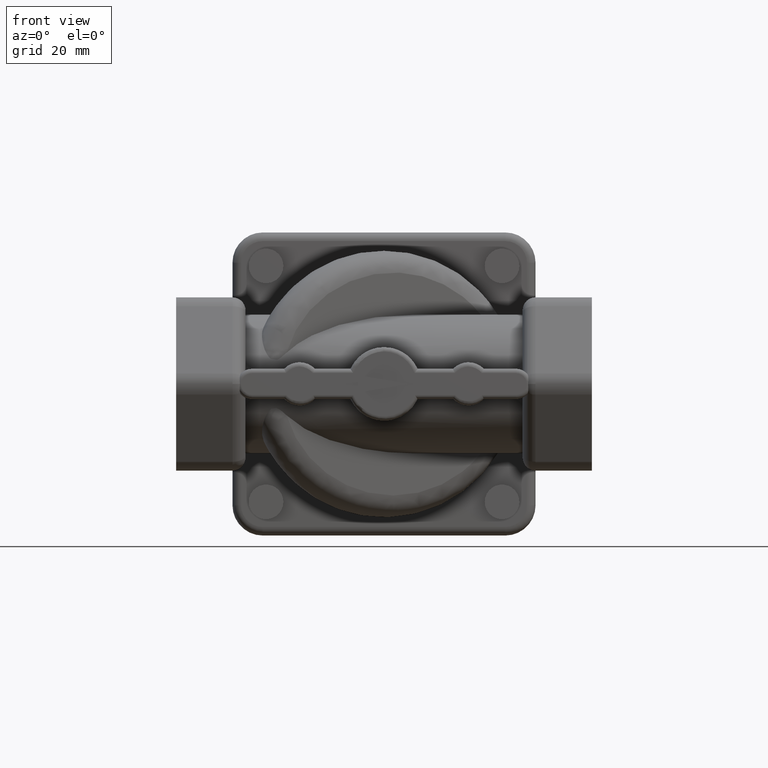
[diagram: clean part render]
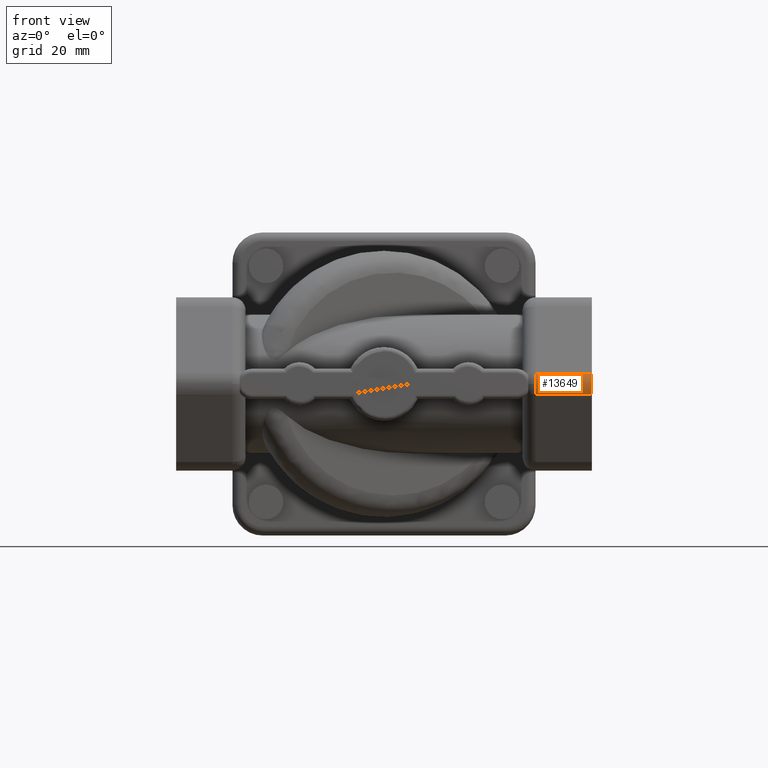
[diagram: same view with one face highlighted and labeled with its STEP entity id]
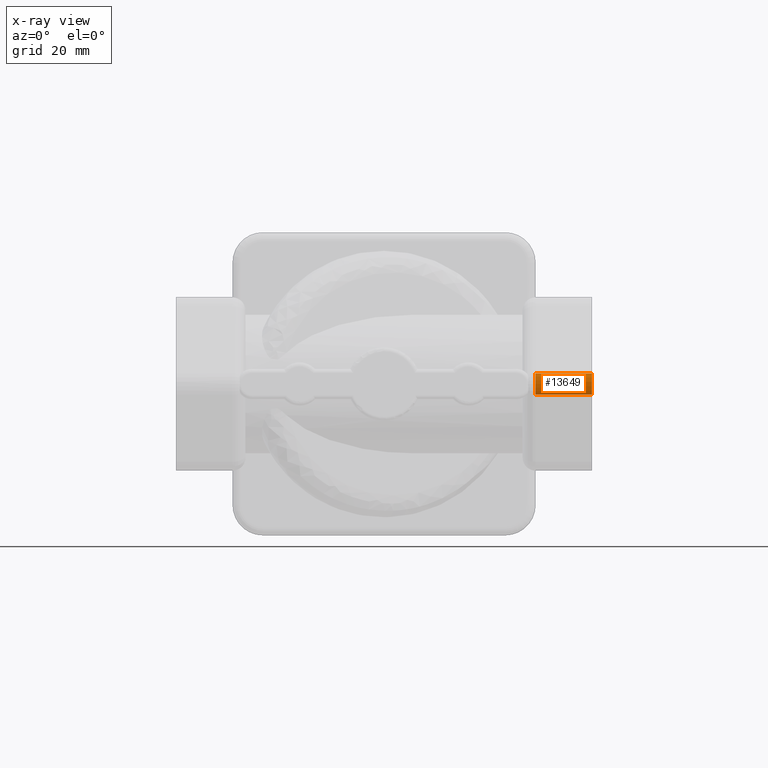
[diagram: x-ray of the same camera — body ghosted, the highlighted face saturated]
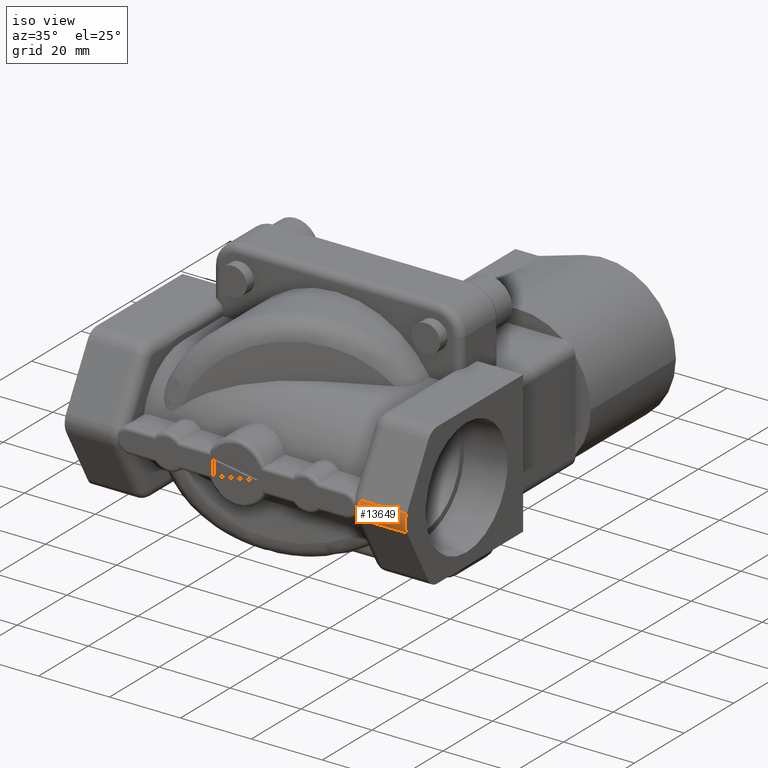
[diagram: same view with one face highlighted and labeled with its STEP entity id]
A machine part, front view. The second image highlights one B-rep face of the part: STEP entity #13649.
The next image is the same camera in x-ray: the body ghosted, the highlighted face saturated — about 0% of this face is hidden behind the body in this view.
A second angle (iso view) of the same face is appended — the face is thin or edge-on in the first view.
In plain terms, the highlighted cylindrical surface (edge-blend (fillet) strip) has radius 5 mm, axis along (1, 0, 0).
Its self-contained STEP definition (entity closure, byte-faithful):
#117 = VECTOR ( 'NONE', #10434, 1000.000000000000000 ) ;
#309 = DIRECTION ( 'NONE',  ( 0.000000000000000000, 1.387778780781445676E-15, -1.000000000000000000 ) ) ;
#465 = CARTESIAN_POINT ( 'NONE',  ( 35.00000000000000000, -44.50000000000000000, -8.577529571474090384E-15 ) ) ;
#517 = DIRECTION ( 'NONE',  ( -1.000000000000000000, 0.000000000000000000, 0.000000000000000000 ) ) ;
#1414 = CARTESIAN_POINT ( 'NONE',  ( 32.00000000000000000, -48.85928463432829716, 2.448803274440265021 ) ) ;
#1509 = VERTEX_POINT ( 'NONE', #11669 ) ;
#1734 = DIRECTION ( 'NONE',  ( 0.000000000000000000, 1.387778780781445676E-15, -1.000000000000000000 ) ) ;
#2144 = VERTEX_POINT ( 'NONE', #7612 ) ;
#2541 = ORIENTED_EDGE ( 'NONE', *, *, #10256, .F. ) ;
#2634 = FACE_OUTER_BOUND ( 'NONE', #12839, .T. ) ;
#2911 = VERTEX_POINT ( 'NONE', #5728 ) ;
#3478 = ORIENTED_EDGE ( 'NONE', *, *, #14282, .T. ) ;
#3519 = LINE ( 'NONE', #1414, #117 ) ;
#3792 = DIRECTION ( 'NONE',  ( 0.000000000000000000, 0.000000000000000000, -1.000000000000000000 ) ) ;
#3854 = AXIS2_PLACEMENT_3D ( 'NONE', #8513, #517, #1734 ) ;
#3885 = CARTESIAN_POINT ( 'NONE',  ( 32.00000000000000000, -48.85928463432829716, -2.448803274440280120 ) ) ;
#4377 = ORIENTED_EDGE ( 'NONE', *, *, #13531, .F. ) ;
#4539 = VERTEX_POINT ( 'NONE', #9362 ) ;
#4582 = CIRCLE ( 'NONE', #11080, 5.000000000000000000 ) ;
#5275 = LINE ( 'NONE', #3885, #8328 ) ;
#5728 = CARTESIAN_POINT ( 'NONE',  ( 35.00000000000000000, -48.85928463432829716, -2.448803274440280120 ) ) ;
#5993 = CARTESIAN_POINT ( 'NONE',  ( 32.00000000000000000, -44.50000000000000000, -8.577529571474090384E-15 ) ) ;
#6368 = EDGE_CURVE ( 'NONE', #1509, #11614, #3519, .T. ) ;
#7002 = DIRECTION ( 'NONE',  ( -1.000000000000000000, 0.000000000000000000, 0.000000000000000000 ) ) ;
#7070 = CYLINDRICAL_SURFACE ( 'NONE', #11322, 5.000000000000000000 ) ;
#7612 = CARTESIAN_POINT ( 'NONE',  ( 35.00000000000000000, -49.50000000000001421, -1.500018788421761335E-14 ) ) ;
#8328 = VECTOR ( 'NONE', #13932, 1000.000000000000000 ) ;
#8513 = CARTESIAN_POINT ( 'NONE',  ( 35.00000000000000000, -44.50000000000000000, -8.577529571474090384E-15 ) ) ;
#9054 = DIRECTION ( 'NONE',  ( 0.000000000000000000, 0.000000000000000000, -1.000000000000000000 ) ) ;
#9362 = CARTESIAN_POINT ( 'NONE',  ( 48.00000000000000000, -48.85928463432829716, -2.448803274440285005 ) ) ;
#9551 = ORIENTED_EDGE ( 'NONE', *, *, #6368, .T. ) ;
#10124 = CIRCLE ( 'NONE', #3854, 5.000000000000000000 ) ;
#10256 = EDGE_CURVE ( 'NONE', #2911, #2144, #10124, .T. ) ;
#10434 = DIRECTION ( 'NONE',  ( -1.000000000000000000, 0.000000000000000000, 0.000000000000000000 ) ) ;
#11080 = AXIS2_PLACEMENT_3D ( 'NONE', #13491, #13332, #9054 ) ;
#11322 = AXIS2_PLACEMENT_3D ( 'NONE', #5993, #13766, #3792 ) ;
#11336 = ORIENTED_EDGE ( 'NONE', *, *, #12421, .F. ) ;
#11568 = AXIS2_PLACEMENT_3D ( 'NONE', #465, #7002, #309 ) ;
#11614 = VERTEX_POINT ( 'NONE', #12889 ) ;
#11669 = CARTESIAN_POINT ( 'NONE',  ( 48.00000000000000000, -48.85928463432829716, 2.448803274440265021 ) ) ;
#11808 = CIRCLE ( 'NONE', #11568, 5.000000000000000000 ) ;
#12421 = EDGE_CURVE ( 'NONE', #2144, #11614, #11808, .T. ) ;
#12839 = EDGE_LOOP ( 'NONE', ( #3478, #4377, #9551, #11336, #2541 ) ) ;
#12889 = CARTESIAN_POINT ( 'NONE',  ( 35.00000000000000000, -48.85928463432829716, 2.448803274440265021 ) ) ;
#13332 = DIRECTION ( 'NONE',  ( 1.000000000000000000, 0.000000000000000000, 0.000000000000000000 ) ) ;
#13491 = CARTESIAN_POINT ( 'NONE',  ( 48.00000000000000000, -44.50000000000000000, -8.577529571474090384E-15 ) ) ;
#13531 = EDGE_CURVE ( 'NONE', #1509, #4539, #4582, .T. ) ;
#13649 = ADVANCED_FACE ( 'NONE', ( #2634 ), #7070, .T. ) ;
#13766 = DIRECTION ( 'NONE',  ( 1.000000000000000000, 0.000000000000000000, 0.000000000000000000 ) ) ;
#13932 = DIRECTION ( 'NONE',  ( 1.000000000000000000, 0.000000000000000000, 0.000000000000000000 ) ) ;
#14282 = EDGE_CURVE ( 'NONE', #2911, #4539, #5275, .T. ) ;